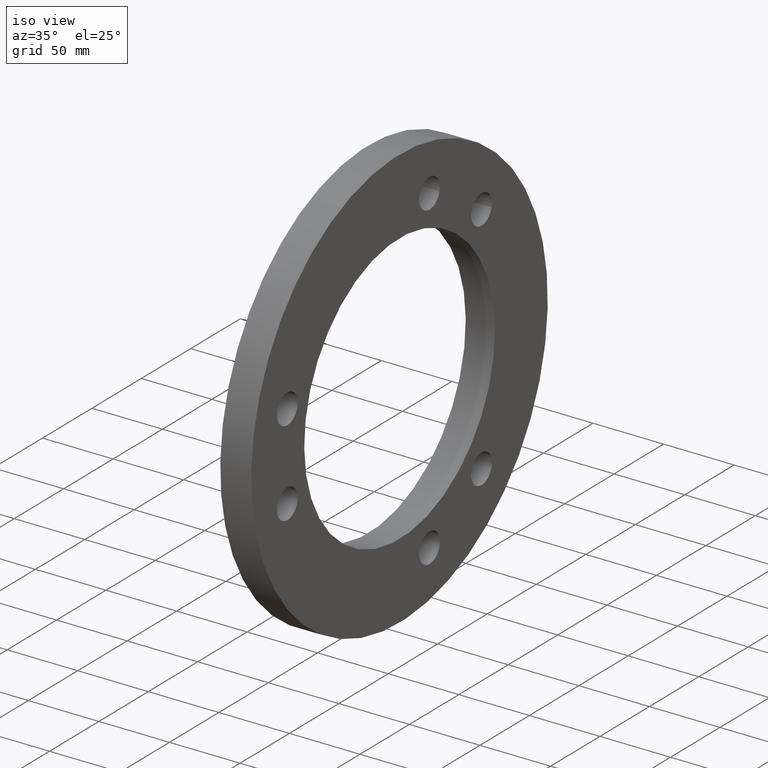
[diagram: clean part render]
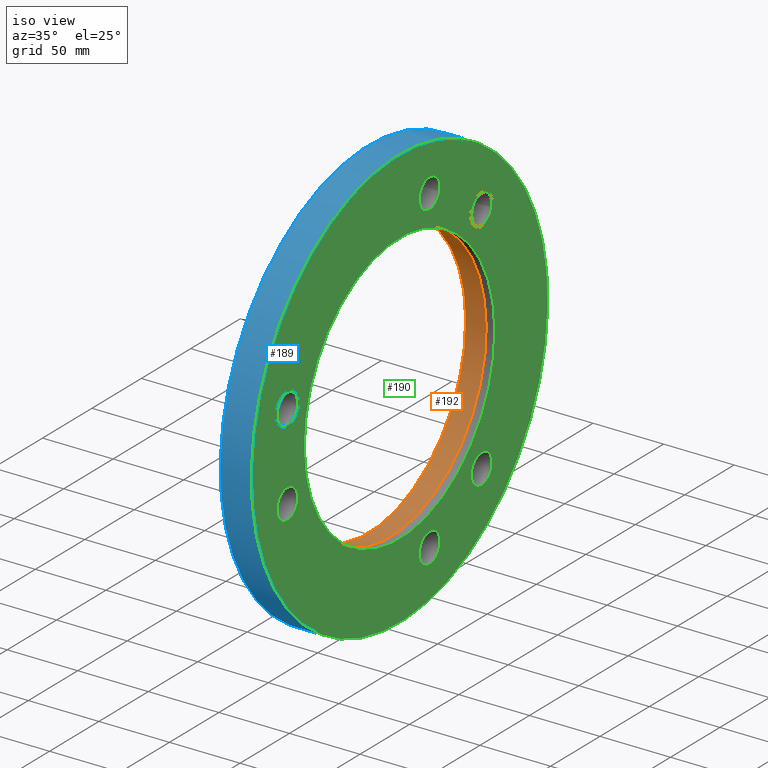
[diagram: same view with three faces highlighted in distinct colors, each labeled with its STEP entity id]
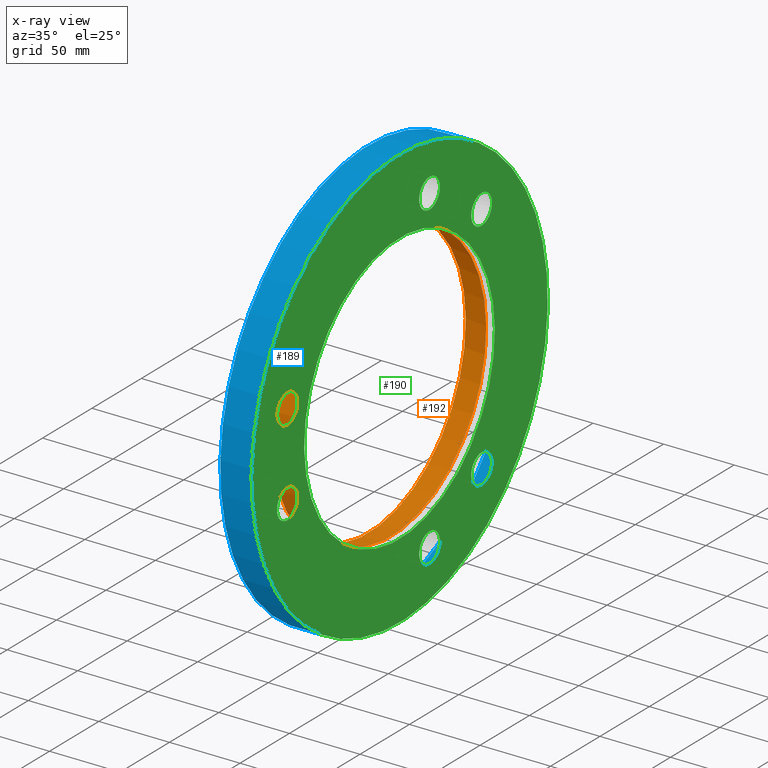
[diagram: x-ray of the same camera — body ghosted, the three highlighted faces saturated]
A machine part, iso view with three faces highlighted in distinct colors.
The next image is the same camera in x-ray (body ghosted, the three faces saturated) — at least one of them is partly hidden behind the body in this view.
Their STEP definitions:

[orange] entity #192 — the highlighted conical surface has half-angle 7.125 deg.
#20=CONICAL_SURFACE('',#246,96.45,0.124354709204595);
#51=ORIENTED_EDGE('',*,*,#68,.T.);
#52=ORIENTED_EDGE('',*,*,#73,.F.);
#68=EDGE_CURVE('',#85,#85,#102,.T.);
#73=EDGE_CURVE('',#90,#90,#107,.T.);
#85=VERTEX_POINT('',#342);
#90=VERTEX_POINT('',#355);
#102=CIRCLE('',#237,98.435);
#107=CIRCLE('',#245,96.45);
#136=EDGE_LOOP('',(#51));
#137=EDGE_LOOP('',(#52));
#170=FACE_BOUND('',#136,.T.);
#171=FACE_BOUND('',#137,.T.);
#192=ADVANCED_FACE('',(#170,#171),#20,.F.);
#237=AXIS2_PLACEMENT_3D('',#341,#286,#287);
#245=AXIS2_PLACEMENT_3D('',#354,#302,#303);
#246=AXIS2_PLACEMENT_3D('',#356,#304,#305);
#286=DIRECTION('',(-1.,0.,0.));
#287=DIRECTION('',(0.,0.,1.));
#302=DIRECTION('',(-1.,0.,0.));
#303=DIRECTION('',(0.,0.,1.));
#304=DIRECTION('',(-1.,0.,0.));
#305=DIRECTION('',(0.,0.,1.));
#341=CARTESIAN_POINT('',(0.,0.,0.));
#342=CARTESIAN_POINT('',(0.,0.,98.435));
#354=CARTESIAN_POINT('',(15.880036816357,0.,0.));
#355=CARTESIAN_POINT('',(15.880036816357,0.,96.45));
#356=CARTESIAN_POINT('',(15.880036816357,0.,0.));

[blue] entity #189 — the highlighted cylindrical surface (bore or boss wall) has radius 150 mm, axis along (-1, 0, 0).
#39=ORIENTED_EDGE('',*,*,#69,.T.);
#40=ORIENTED_EDGE('',*,*,#67,.F.);
#67=EDGE_CURVE('',#84,#84,#101,.T.);
#69=EDGE_CURVE('',#86,#86,#103,.T.);
#84=VERTEX_POINT('',#340);
#86=VERTEX_POINT('',#345);
#101=CIRCLE('',#236,150.);
#103=CIRCLE('',#239,150.);
#124=EDGE_LOOP('',(#39));
#125=EDGE_LOOP('',(#40));
#158=FACE_BOUND('',#124,.T.);
#159=FACE_BOUND('',#125,.T.);
#180=CYLINDRICAL_SURFACE('',#238,150.);
#189=ADVANCED_FACE('',(#158,#159),#180,.T.);
#236=AXIS2_PLACEMENT_3D('',#339,#284,#285);
#238=AXIS2_PLACEMENT_3D('',#343,#288,#289);
#239=AXIS2_PLACEMENT_3D('',#344,#290,#291);
#284=DIRECTION('',(-1.,0.,0.));
#285=DIRECTION('',(0.,0.,1.));
#288=DIRECTION('',(-1.,0.,0.));
#289=DIRECTION('',(0.,0.,1.));
#290=DIRECTION('',(-1.,0.,0.));
#291=DIRECTION('',(0.,0.,1.));
#339=CARTESIAN_POINT('',(0.,0.,0.));
#340=CARTESIAN_POINT('',(0.,0.,150.));
#343=CARTESIAN_POINT('',(-60.,0.,0.));
#344=CARTESIAN_POINT('',(22.,0.,0.));
#345=CARTESIAN_POINT('',(22.,0.,150.));

[green] entity #190 — the highlighted planar face has unit normal (1, 0, 0).
#22=PLANE('',#240);
#41=ORIENTED_EDGE('',*,*,#59,.F.);
#42=ORIENTED_EDGE('',*,*,#57,.F.);
#43=ORIENTED_EDGE('',*,*,#63,.F.);
#44=ORIENTED_EDGE('',*,*,#61,.F.);
#45=ORIENTED_EDGE('',*,*,#70,.F.);
#46=ORIENTED_EDGE('',*,*,#71,.F.);
#47=ORIENTED_EDGE('',*,*,#72,.T.);
#48=ORIENTED_EDGE('',*,*,#69,.F.);
#57=EDGE_CURVE('',#74,#74,#91,.T.);
#59=EDGE_CURVE('',#76,#76,#93,.T.);
#61=EDGE_CURVE('',#78,#78,#95,.T.);
#63=EDGE_CURVE('',#80,#80,#97,.T.);
#69=EDGE_CURVE('',#86,#86,#103,.T.);
#70=EDGE_CURVE('',#87,#87,#104,.T.);
#71=EDGE_CURVE('',#88,#88,#105,.T.);
#72=EDGE_CURVE('',#89,#89,#106,.T.);
#74=VERTEX_POINT('',#316);
#76=VERTEX_POINT('',#321);
#78=VERTEX_POINT('',#326);
#80=VERTEX_POINT('',#331);
#86=VERTEX_POINT('',#345);
#87=VERTEX_POINT('',#348);
#88=VERTEX_POINT('',#350);
#89=VERTEX_POINT('',#352);
#91=CIRCLE('',#222,10.5);
#93=CIRCLE('',#225,10.5);
#95=CIRCLE('',#228,10.5);
#97=CIRCLE('',#231,10.5);
#103=CIRCLE('',#239,150.);
#104=CIRCLE('',#241,10.5);
#105=CIRCLE('',#242,10.5);
#106=CIRCLE('',#243,96.45);
#126=EDGE_LOOP('',(#41));
#127=EDGE_LOOP('',(#42));
#128=EDGE_LOOP('',(#43));
#129=EDGE_LOOP('',(#44));
#130=EDGE_LOOP('',(#45));
#131=EDGE_LOOP('',(#46));
#132=EDGE_LOOP('',(#47));
#133=EDGE_LOOP('',(#48));
#160=FACE_BOUND('',#126,.T.);
#161=FACE_BOUND('',#127,.T.);
#162=FACE_BOUND('',#128,.T.);
#163=FACE_BOUND('',#129,.T.);
#164=FACE_BOUND('',#130,.T.);
#165=FACE_BOUND('',#131,.T.);
#166=FACE_BOUND('',#132,.T.);
#167=FACE_BOUND('',#133,.T.);
#190=ADVANCED_FACE('',(#160,#161,#162,#163,#164,#165,#166,#167),#22,.T.);
#222=AXIS2_PLACEMENT_3D('',#315,#256,#257);
#225=AXIS2_PLACEMENT_3D('',#320,#262,#263);
#228=AXIS2_PLACEMENT_3D('',#325,#268,#269);
#231=AXIS2_PLACEMENT_3D('',#330,#274,#275);
#239=AXIS2_PLACEMENT_3D('',#344,#290,#291);
#240=AXIS2_PLACEMENT_3D('',#346,#292,#293);
#241=AXIS2_PLACEMENT_3D('',#347,#294,#295);
#242=AXIS2_PLACEMENT_3D('',#349,#296,#297);
#243=AXIS2_PLACEMENT_3D('',#351,#298,#299);
#256=DIRECTION('',(1.,0.,0.));
#257=DIRECTION('',(0.,-0.500000000000001,-0.866025403784438));
#262=DIRECTION('',(1.,0.,0.));
#263=DIRECTION('',(0.,-0.500000000000001,-0.866025403784438));
#268=DIRECTION('',(1.,0.,0.));
#269=DIRECTION('',(0.,-0.5,0.866025403784439));
#274=DIRECTION('',(1.,0.,0.));
#275=DIRECTION('',(0.,-0.5,0.866025403784439));
#290=DIRECTION('',(-1.,0.,0.));
#291=DIRECTION('',(0.,0.,1.));
#292=DIRECTION('',(1.,0.,0.));
#293=DIRECTION('',(0.,0.,-1.));
#294=DIRECTION('',(1.,0.,0.));
#295=DIRECTION('',(0.,1.,0.));
#296=DIRECTION('',(1.,0.,0.));
#297=DIRECTION('',(0.,1.,0.));
#298=DIRECTION('',(-1.,0.,0.));
#299=DIRECTION('',(0.,0.,1.));
#315=CARTESIAN_POINT('',(22.,58.7499999999999,-101.757984944672));
#316=CARTESIAN_POINT('',(22.,53.4999999999999,-110.851251684408));
#320=CARTESIAN_POINT('',(22.,101.757984944671,-58.7500000000001));
#321=CARTESIAN_POINT('',(22.,96.5079849446714,-67.8432667397367));
#325=CARTESIAN_POINT('',(22.,-117.5,-6.93889390390723E-15));
#326=CARTESIAN_POINT('',(22.,-122.75,9.0932667397366));
#330=CARTESIAN_POINT('',(22.,-101.757984944672,-58.75));
#331=CARTESIAN_POINT('',(22.,-107.007984944672,-49.6567332602634));
#344=CARTESIAN_POINT('',(22.,0.,0.));
#345=CARTESIAN_POINT('',(22.,0.,150.));
#346=CARTESIAN_POINT('',(22.,0.,150.));
#347=CARTESIAN_POINT('',(22.,58.75,101.757984944672));
#348=CARTESIAN_POINT('',(22.,69.25,101.757984944672));
#349=CARTESIAN_POINT('',(22.,-4.33680868994202E-16,117.5));
#350=CARTESIAN_POINT('',(22.,10.5,117.5));
#351=CARTESIAN_POINT('',(22.,0.,0.));
#352=CARTESIAN_POINT('',(22.,0.,96.45));